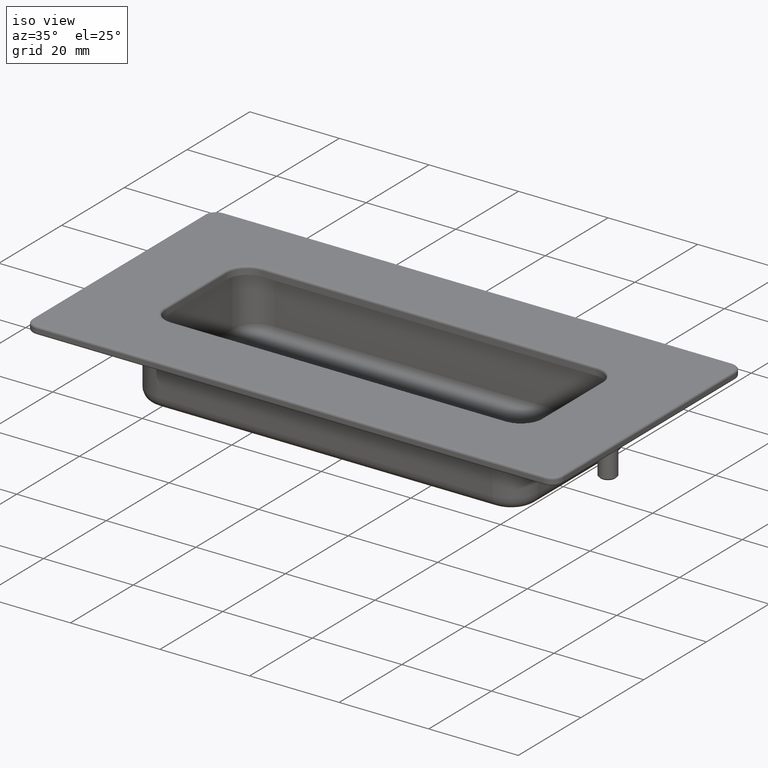
[diagram: clean part render]
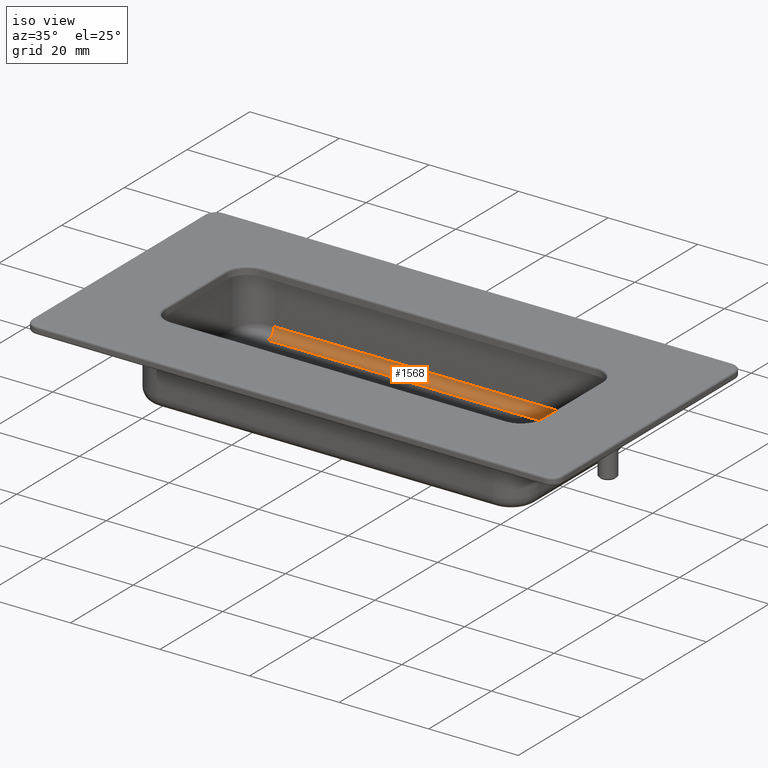
[diagram: same view with one face highlighted and labeled with its STEP entity id]
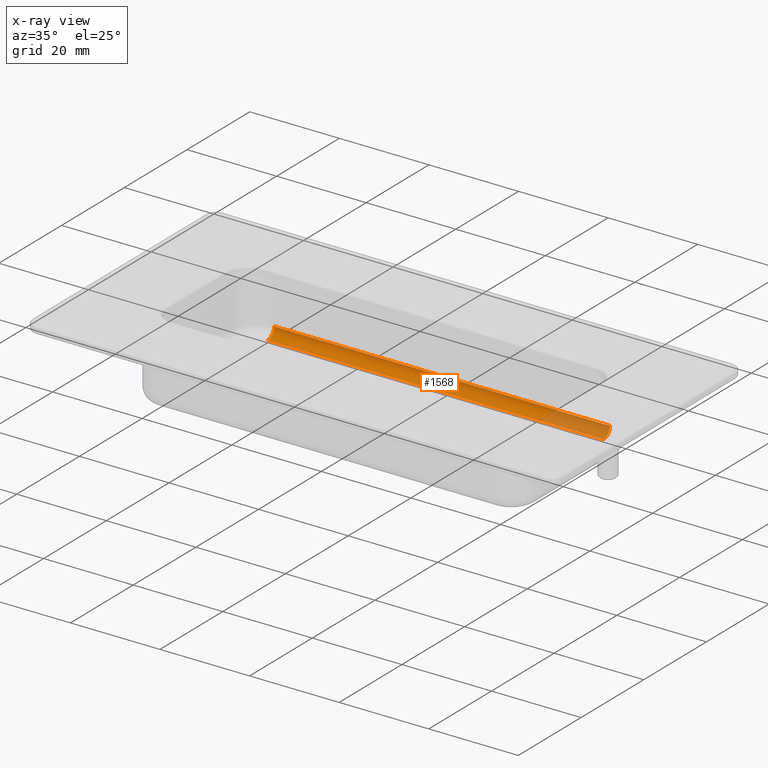
[diagram: x-ray of the same camera — body ghosted, the highlighted face saturated]
A machine part, iso view. The second image highlights one B-rep face of the part: STEP entity #1568.
The next image is the same camera in x-ray: the body ghosted, the highlighted face saturated — about 18% of this face is hidden behind the body in this view.
In plain terms, the highlighted cylindrical surface (edge-blend (fillet) strip) has radius 2 mm, axis along (1, 0, 0).
Its self-contained STEP definition (entity closure, byte-faithful):
#57=CYLINDRICAL_SURFACE('',#1786,2.);
#149=LINE('',#2768,#253);
#150=LINE('',#2769,#254);
#253=VECTOR('',#2293,75.);
#254=VECTOR('',#2294,75.);
#398=FACE_OUTER_BOUND('',#511,.T.);
#511=EDGE_LOOP('',(#1370,#1371,#1372,#1373));
#628=CIRCLE('',#1764,2.00000000000002);
#641=CIRCLE('',#1783,2.);
#759=VERTEX_POINT('',#2723);
#760=VERTEX_POINT('',#2724);
#773=VERTEX_POINT('',#2762);
#774=VERTEX_POINT('',#2763);
#961=EDGE_CURVE('',#759,#760,#628,.T.);
#980=EDGE_CURVE('',#773,#774,#641,.T.);
#983=EDGE_CURVE('',#759,#774,#149,.T.);
#984=EDGE_CURVE('',#773,#760,#150,.T.);
#1370=ORIENTED_EDGE('',*,*,#961,.F.);
#1371=ORIENTED_EDGE('',*,*,#983,.T.);
#1372=ORIENTED_EDGE('',*,*,#980,.F.);
#1373=ORIENTED_EDGE('',*,*,#984,.T.);
#1568=ADVANCED_FACE('',(#398),#57,.F.);
#1764=AXIS2_PLACEMENT_3D('',#2725,#2241,#2242);
#1783=AXIS2_PLACEMENT_3D('',#2764,#2285,#2286);
#1786=AXIS2_PLACEMENT_3D('',#2767,#2291,#2292);
#2241=DIRECTION('center_axis',(-1.,0.,0.));
#2242=DIRECTION('ref_axis',(0.,1.,0.));
#2285=DIRECTION('center_axis',(1.,0.,0.));
#2286=DIRECTION('ref_axis',(0.,0.,-1.));
#2291=DIRECTION('center_axis',(1.,0.,0.));
#2292=DIRECTION('ref_axis',(0.,0.707106781186548,-0.707106781186548));
#2293=DIRECTION('',(-1.,0.,0.));
#2294=DIRECTION('',(1.,0.,0.));
#2723=CARTESIAN_POINT('',(37.5,18.5,-13.5));
#2724=CARTESIAN_POINT('',(37.5,16.5,-15.5));
#2725=CARTESIAN_POINT('Origin',(37.5,16.5,-13.5));
#2762=CARTESIAN_POINT('',(-37.5,16.5,-15.5));
#2763=CARTESIAN_POINT('',(-37.5,18.5,-13.5));
#2764=CARTESIAN_POINT('Origin',(-37.5,16.5,-13.5));
#2767=CARTESIAN_POINT('Origin',(18.75,16.5,-13.5));
#2768=CARTESIAN_POINT('',(18.75,18.5,-13.5));
#2769=CARTESIAN_POINT('',(18.75,16.5,-15.5));